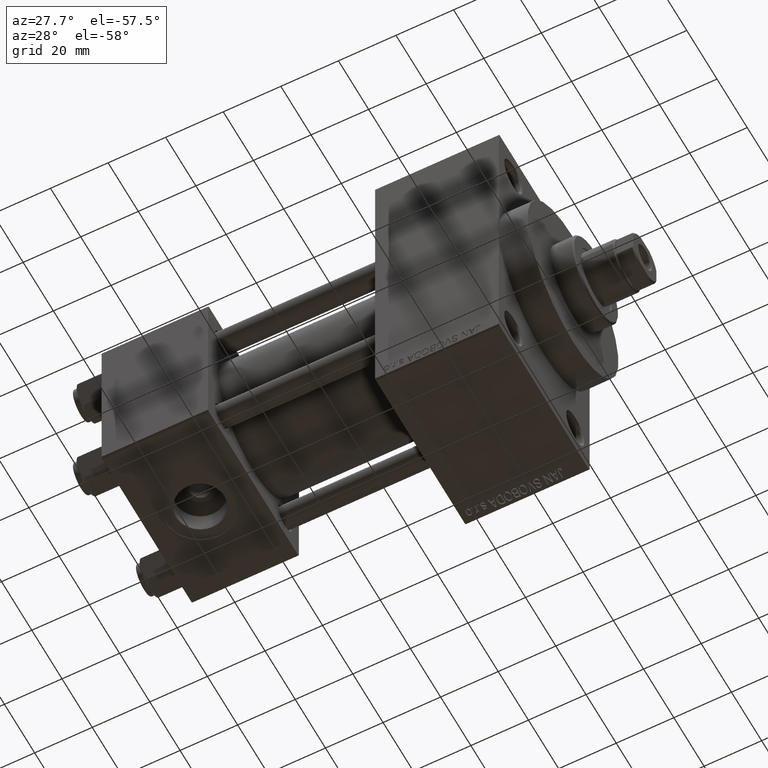
[diagram: clean part render]
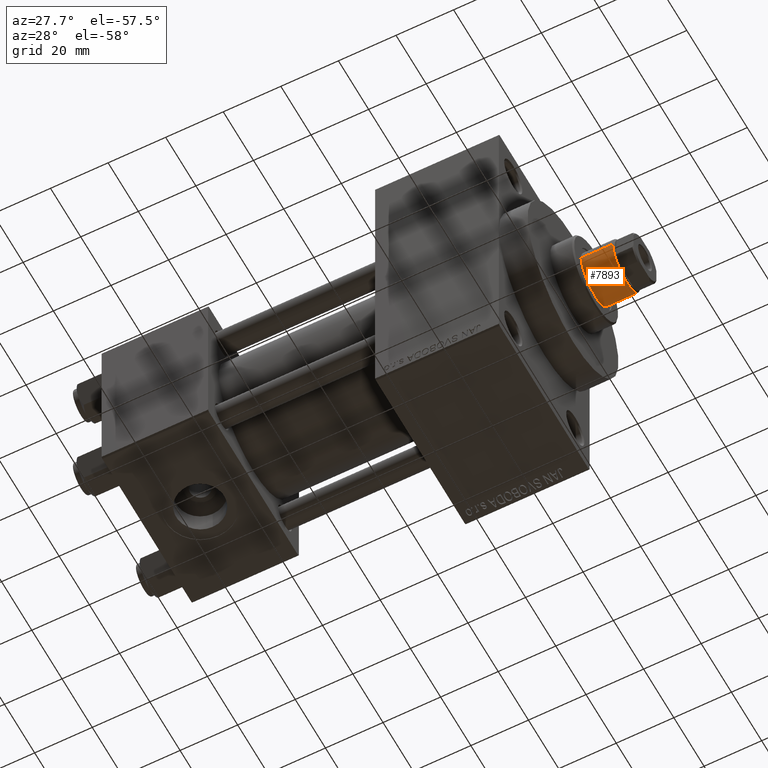
[diagram: same view with one face highlighted and labeled with its STEP entity id]
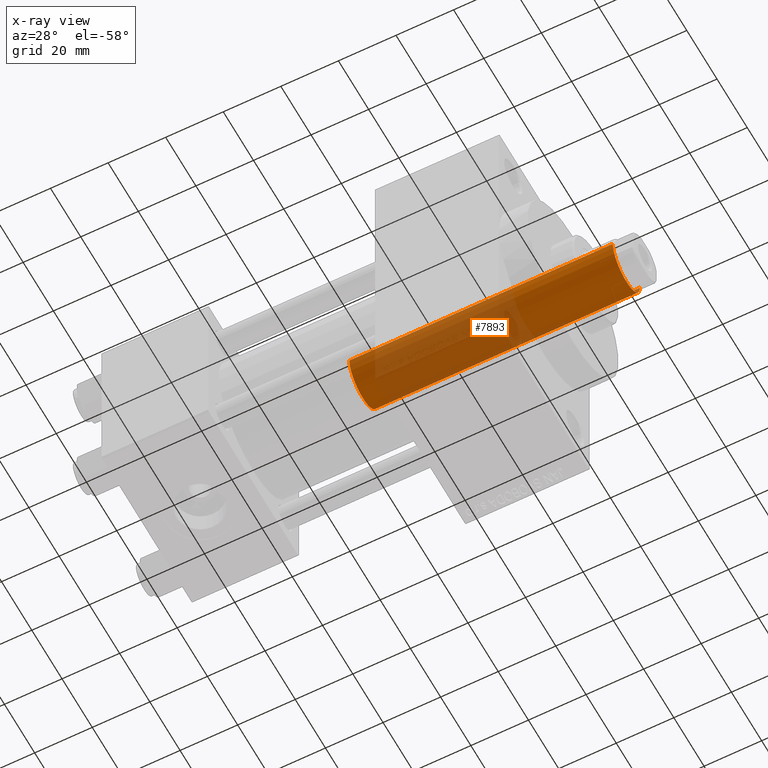
[diagram: x-ray of the same camera — body ghosted, the highlighted face saturated]
A machine part, auxiliary view. The second image highlights one B-rep face of the part: STEP entity #7893.
The next image is the same camera in x-ray: the body ghosted, the highlighted face saturated — about 57% of this face is hidden behind the body in this view.
In plain terms, the highlighted cylindrical surface (edge-blend (fillet) strip) has radius 9 mm, axis along (-1, 0, 0).
Its self-contained STEP definition (entity closure, byte-faithful):
#505 = VERTEX_POINT ( 'NONE', #17550 ) ;
#785 = CARTESIAN_POINT ( 'NONE',  ( -9.000000000000000000, 0.000000000000000000, 129.5000000000000000 ) ) ;
#1119 = DIRECTION ( 'NONE',  ( 0.000000000000000000, 0.000000000000000000, -1.000000000000000000 ) ) ;
#1546 = CARTESIAN_POINT ( 'NONE',  ( 9.000000000000000000, 1.102182119232617714E-15, 129.5000000000000000 ) ) ;
#2501 = LINE ( 'NONE', #22181, #9631 ) ;
#3377 = VERTEX_POINT ( 'NONE', #26682 ) ;
#3623 = ORIENTED_EDGE ( 'NONE', *, *, #23937, .T. ) ;
#5106 = CYLINDRICAL_SURFACE ( 'NONE', #8532, 9.000000000000000000 ) ;
#6697 = ORIENTED_EDGE ( 'NONE', *, *, #48458, .T. ) ;
#7893 = ADVANCED_FACE ( 'NONE', ( #46493 ), #5106, .T. ) ;
#8532 = AXIS2_PLACEMENT_3D ( 'NONE', #31795, #24555, #20318 ) ;
#8596 = VECTOR ( 'NONE', #37162, 1000.000000000000000 ) ;
#8942 = ORIENTED_EDGE ( 'NONE', *, *, #13875, .F. ) ;
#9506 = DIRECTION ( 'NONE',  ( 0.000000000000000000, 0.000000000000000000, 1.000000000000000000 ) ) ;
#9631 = VECTOR ( 'NONE', #14446, 1000.000000000000000 ) ;
#11389 = VERTEX_POINT ( 'NONE', #785 ) ;
#12514 = AXIS2_PLACEMENT_3D ( 'NONE', #43673, #9506, #16495 ) ;
#13875 = EDGE_CURVE ( 'NONE', #11389, #505, #40420, .T. ) ;
#14446 = DIRECTION ( 'NONE',  ( -0.000000000000000000, -0.000000000000000000, -1.000000000000000000 ) ) ;
#14460 = CIRCLE ( 'NONE', #26434, 9.000000000000000000 ) ;
#16327 = DIRECTION ( 'NONE',  ( 1.000000000000000000, 0.000000000000000000, 0.000000000000000000 ) ) ;
#16495 = DIRECTION ( 'NONE',  ( 1.000000000000000000, 0.000000000000000000, 0.000000000000000000 ) ) ;
#17550 = CARTESIAN_POINT ( 'NONE',  ( -9.000000000000000000, 0.000000000000000000, 38.00000000000000000 ) ) ;
#18385 = ORIENTED_EDGE ( 'NONE', *, *, #26252, .T. ) ;
#20318 = DIRECTION ( 'NONE',  ( -1.000000000000000000, 0.000000000000000000, 0.000000000000000000 ) ) ;
#21952 = CARTESIAN_POINT ( 'NONE',  ( -9.000000000000000000, 0.000000000000000000, 130.0000000000000000 ) ) ;
#22181 = CARTESIAN_POINT ( 'NONE',  ( 9.000000000000000000, 1.102182119232617714E-15, 130.0000000000000000 ) ) ;
#23937 = EDGE_CURVE ( 'NONE', #44443, #3377, #2501, .T. ) ;
#24555 = DIRECTION ( 'NONE',  ( -0.000000000000000000, -0.000000000000000000, -1.000000000000000000 ) ) ;
#26252 = EDGE_CURVE ( 'NONE', #11389, #44443, #14460, .T. ) ;
#26434 = AXIS2_PLACEMENT_3D ( 'NONE', #38534, #1119, #16327 ) ;
#26682 = CARTESIAN_POINT ( 'NONE',  ( 9.000000000000000000, 1.102182119232617714E-15, 38.00000000000000000 ) ) ;
#31795 = CARTESIAN_POINT ( 'NONE',  ( 0.000000000000000000, 0.000000000000000000, 130.0000000000000000 ) ) ;
#35208 = EDGE_LOOP ( 'NONE', ( #18385, #3623, #6697, #8942 ) ) ;
#37162 = DIRECTION ( 'NONE',  ( -0.000000000000000000, -0.000000000000000000, -1.000000000000000000 ) ) ;
#38534 = CARTESIAN_POINT ( 'NONE',  ( 0.000000000000000000, 0.000000000000000000, 129.5000000000000000 ) ) ;
#40420 = LINE ( 'NONE', #21952, #8596 ) ;
#42793 = CIRCLE ( 'NONE', #12514, 9.000000000000000000 ) ;
#43673 = CARTESIAN_POINT ( 'NONE',  ( 0.000000000000000000, 0.000000000000000000, 38.00000000000000000 ) ) ;
#44443 = VERTEX_POINT ( 'NONE', #1546 ) ;
#46493 = FACE_OUTER_BOUND ( 'NONE', #35208, .T. ) ;
#48458 = EDGE_CURVE ( 'NONE', #3377, #505, #42793, .T. ) ;